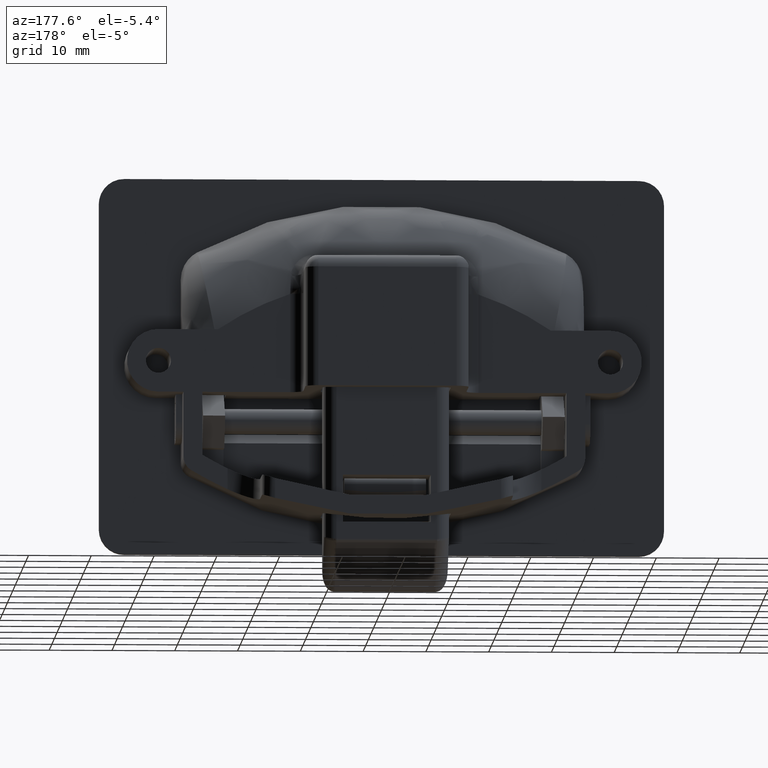
[diagram: clean part render]
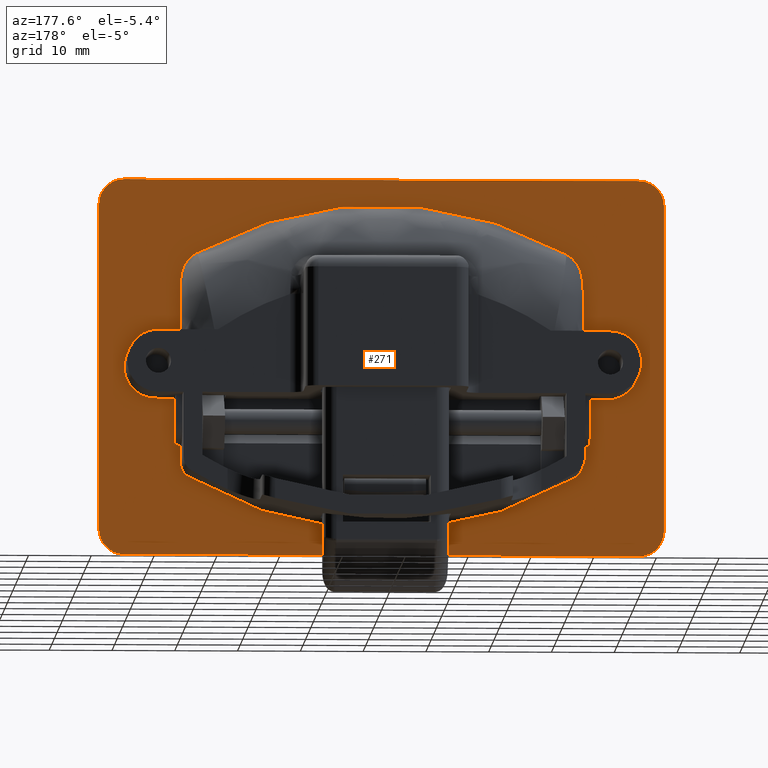
[diagram: same view with one face highlighted and labeled with its STEP entity id]
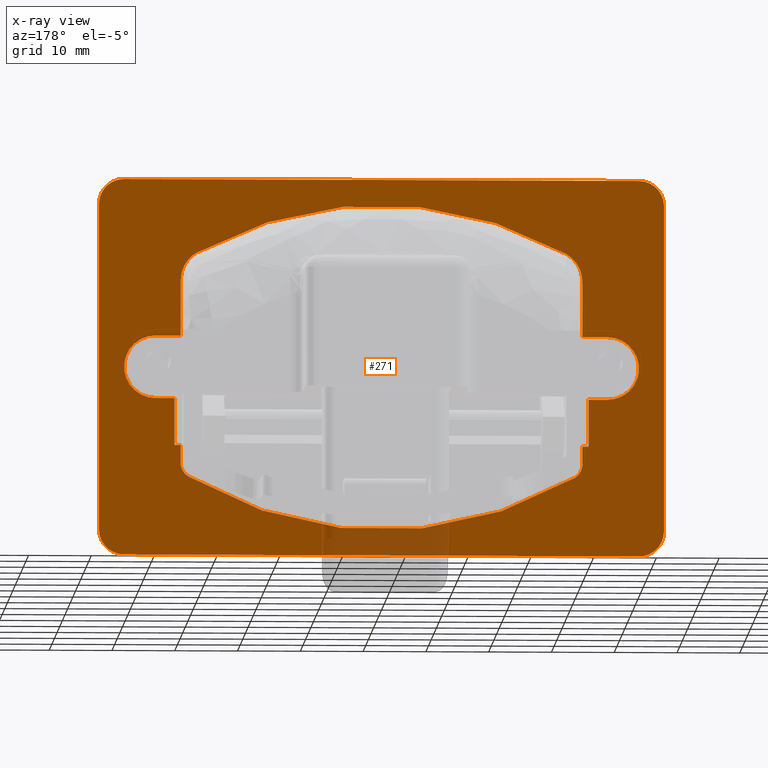
[diagram: x-ray of the same camera — body ghosted, the highlighted face saturated]
A machine part, auxiliary view. The second image highlights one B-rep face of the part: STEP entity #271.
The next image is the same camera in x-ray: the body ghosted, the highlighted face saturated — about 4% of this face is hidden behind the body in this view.
In plain terms, the highlighted planar face has unit normal (0, 1, 0).
Its self-contained STEP definition (entity closure, byte-faithful):
#271=ADVANCED_FACE('',(#1599,#1600),#1598,.T.);
#1598=PLANE('',#4059);
#1599=FACE_OUTER_BOUND('',#4060,.T.);
#1600=FACE_BOUND('',#4061,.T.);
#4056=CARTESIAN_POINT('',(-5.40000000000E+01,0.00000000000E+00,6.60000000000E+01));
#4057=DIRECTION('',(-0.00000000000E+00,1.00000000000E+00,0.00000000000E+00));
#4058=DIRECTION('',(1.00000000000E+00,0.00000000000E+00,0.00000000000E+00));
#4059=AXIS2_PLACEMENT_3D('',#4056,#4057,#4058);
#4060=EDGE_LOOP('',(#5628,#5629,#5630,#5631,#5632,#5633,#5634,#5635));
#4061=EDGE_LOOP('',(#5636,#5637,#5638,#5639,#5640,#5641,#5642,#5643,#5644,#5645,#5646,#5647,#5648,#5649,#5650,#5651,#5652,#5653,#5654,#5655,#5656,#5657));
#5628=ORIENTED_EDGE('',*,*,#6523,.F.);
#5629=ORIENTED_EDGE('',*,*,#6449,.T.);
#5630=ORIENTED_EDGE('',*,*,#6524,.F.);
#5631=ORIENTED_EDGE('',*,*,#6427,.T.);
#5632=ORIENTED_EDGE('',*,*,#6435,.F.);
#5633=ORIENTED_EDGE('',*,*,#6525,.T.);
#5634=ORIENTED_EDGE('',*,*,#6438,.F.);
#5635=ORIENTED_EDGE('',*,*,#6445,.T.);
#5636=ORIENTED_EDGE('',*,*,#6397,.T.);
#5637=ORIENTED_EDGE('',*,*,#6406,.T.);
#5638=ORIENTED_EDGE('',*,*,#6526,.F.);
#5639=ORIENTED_EDGE('',*,*,#6411,.T.);
#5640=ORIENTED_EDGE('',*,*,#6527,.T.);
#5641=ORIENTED_EDGE('',*,*,#6528,.T.);
#5642=ORIENTED_EDGE('',*,*,#6529,.F.);
#5643=ORIENTED_EDGE('',*,*,#6530,.F.);
#5644=ORIENTED_EDGE('',*,*,#6531,.T.);
#5645=ORIENTED_EDGE('',*,*,#6532,.F.);
#5646=ORIENTED_EDGE('',*,*,#6533,.T.);
#5647=ORIENTED_EDGE('',*,*,#6534,.T.);
#5648=ORIENTED_EDGE('',*,*,#6535,.T.);
#5649=ORIENTED_EDGE('',*,*,#6536,.F.);
#5650=ORIENTED_EDGE('',*,*,#6537,.T.);
#5651=ORIENTED_EDGE('',*,*,#6538,.T.);
#5652=ORIENTED_EDGE('',*,*,#6539,.T.);
#5653=ORIENTED_EDGE('',*,*,#6540,.F.);
#5654=ORIENTED_EDGE('',*,*,#6541,.F.);
#5655=ORIENTED_EDGE('',*,*,#6542,.F.);
#5656=ORIENTED_EDGE('',*,*,#6543,.F.);
#5657=ORIENTED_EDGE('',*,*,#6404,.T.);
#6397=EDGE_CURVE('',#8181,#8182,#8183,.T.);
#6404=EDGE_CURVE('',#8230,#8181,#8231,.T.);
#6406=EDGE_CURVE('',#8182,#8243,#8244,.T.);
#6411=EDGE_CURVE('',#8277,#8270,#8278,.T.);
#6427=EDGE_CURVE('',#8367,#8381,#8388,.T.);
#6435=EDGE_CURVE('',#8434,#8381,#8441,.T.);
#6438=EDGE_CURVE('',#8455,#8462,#8463,.T.);
#6445=EDGE_CURVE('',#8455,#8502,#8509,.T.);
#6449=EDGE_CURVE('',#8516,#8530,#8537,.T.);
#6523=EDGE_CURVE('',#8516,#8502,#9046,.T.);
#6524=EDGE_CURVE('',#8367,#8530,#9052,.T.);
#6525=EDGE_CURVE('',#8434,#8462,#9058,.T.);
#6526=EDGE_CURVE('',#8277,#8243,#9064,.T.);
#6527=EDGE_CURVE('',#8270,#9070,#9071,.T.);
#6528=EDGE_CURVE('',#9070,#9077,#9078,.T.);
#6529=EDGE_CURVE('',#9084,#9077,#9085,.T.);
#6530=EDGE_CURVE('',#9091,#9084,#9092,.T.);
#6531=EDGE_CURVE('',#9091,#9098,#9099,.T.);
#6532=EDGE_CURVE('',#9105,#9098,#9106,.T.);
#6533=EDGE_CURVE('',#9105,#9112,#9113,.T.);
#6534=EDGE_CURVE('',#9112,#9119,#9120,.T.);
#6535=EDGE_CURVE('',#9119,#9126,#9127,.T.);
#6536=EDGE_CURVE('',#9133,#9126,#9134,.T.);
#6537=EDGE_CURVE('',#9133,#9140,#9141,.T.);
#6538=EDGE_CURVE('',#9140,#9147,#9148,.T.);
#6539=EDGE_CURVE('',#9147,#9154,#9155,.T.);
#6540=EDGE_CURVE('',#9161,#9154,#9162,.T.);
#6541=EDGE_CURVE('',#9168,#9161,#9169,.T.);
#6542=EDGE_CURVE('',#9175,#9168,#9176,.T.);
#6543=EDGE_CURVE('',#8230,#9175,#9182,.T.);
#8181=VERTEX_POINT('',#11386);
#8182=VERTEX_POINT('',#11387);
#8183=CIRCLE('',#11391,5.00000000000E+00);
#8230=VERTEX_POINT('',#11416);
#8231=LINE('',#11417,#11418);
#8243=VERTEX_POINT('',#11423);
#8244=LINE('',#11424,#11425);
#8270=VERTEX_POINT('',#11455);
#8277=VERTEX_POINT('',#11480);
#8278=(BOUNDED_CURVE() B_SPLINE_CURVE(3,(#11481,#11482,#11483,#11484,#11485,#11486,#11487,#11488,#11489,#11490,#11491,#11492,#11493,#11494),.UNSPECIFIED.,.F.,.F.) B_SPLINE_CURVE_WITH_KNOTS((4,2,2,2,2,2,4),(0.00000000000E+00,1.35135199743E-03,2.02702799615E-03,2.70270399487E-03,3.37837999358E-03,4.05405599230E-03,5.40540798974E-03),.UNSPECIFIED.) CURVE() GEOMETRIC_REPRESENTATION_ITEM() RATIONAL_B_SPLINE_CURVE((1.00000000000E+00,1.00000000000E+00,1.00000000000E+00,1.00000000000E+00,1.00000000000E+00,1.00000000000E+00,1.00000000000E+00,1.00000000000E+00,1.00000000000E+00,1.00000000000E+00,1.00000000000E+00,1.00000000000E+00,1.00000000000E+00,1.00000000000E+00)) REPRESENTATION_ITEM('') );
#8367=VERTEX_POINT('',#11592);
#8381=VERTEX_POINT('',#11615);
#8388=CIRCLE('',#11622,4.00000000000E+00);
#8434=VERTEX_POINT('',#11667);
#8441=LINE('',#11671,#11672);
#8455=VERTEX_POINT('',#11682);
#8462=VERTEX_POINT('',#11686);
#8463=LINE('',#11687,#11688);
#8502=VERTEX_POINT('',#11738);
#8509=CIRCLE('',#11745,4.00000000000E+00);
#8516=VERTEX_POINT('',#11747);
#8530=VERTEX_POINT('',#11770);
#8537=CIRCLE('',#11777,4.00000000000E+00);
#9046=LINE('',#12325,#12326);
#9052=LINE('',#12328,#12329);
#9058=CIRCLE('',#12334,4.00000000000E+00);
#9064=LINE('',#12335,#12336);
#9070=VERTEX_POINT('',#12338);
#9071=CIRCLE('',#12342,6.00000000000E+01);
#9077=VERTEX_POINT('',#12343);
#9078=(BOUNDED_CURVE() B_SPLINE_CURVE(3,(#12344,#12345,#12346,#12347,#12348,#12349,#12350,#12351,#12352,#12353,#12354,#12355,#12356,#12357),.UNSPECIFIED.,.F.,.F.) B_SPLINE_CURVE_WITH_KNOTS((4,2,2,2,2,2,4),(0.00000000000E+00,1.34919558329E-03,2.02379337494E-03,2.69839116658E-03,4.04758674987E-03,4.72218454152E-03,5.39678233316E-03),.UNSPECIFIED.) CURVE() GEOMETRIC_REPRESENTATION_ITEM() RATIONAL_B_SPLINE_CURVE((1.00000000000E+00,1.00000000000E+00,1.00000000000E+00,1.00000000000E+00,1.00000000000E+00,1.00000000000E+00,1.00000000000E+00,1.00000000000E+00,1.00000000000E+00,1.00000000000E+00,1.00000000000E+00,1.00000000000E+00,1.00000000000E+00,1.00000000000E+00)) REPRESENTATION_ITEM('') );
#9084=VERTEX_POINT('',#12358);
#9085=LINE('',#12359,#12360);
#9091=VERTEX_POINT('',#12362);
#9092=LINE('',#12363,#12364);
#9098=VERTEX_POINT('',#12366);
#9099=CIRCLE('',#12370,5.00000000000E+00);
#9105=VERTEX_POINT('',#12371);
#9106=LINE('',#12372,#12373);
#9112=VERTEX_POINT('',#12375);
#9113=LINE('',#12376,#12377);
#9119=VERTEX_POINT('',#12379);
#9120=LINE('',#12380,#12381);
#9126=VERTEX_POINT('',#12383);
#9127=LINE('',#12384,#12385);
#9133=VERTEX_POINT('',#12387);
#9134=LINE('',#12388,#12389);
#9140=VERTEX_POINT('',#12391);
#9141=CIRCLE('',#12395,2.50000000000E+00);
#9147=VERTEX_POINT('',#12396);
#9148=CIRCLE('',#12400,6.00000000000E+01);
#9154=VERTEX_POINT('',#12401);
#9155=CIRCLE('',#12405,2.50000000000E+00);
#9161=VERTEX_POINT('',#12406);
#9162=LINE('',#12407,#12408);
#9168=VERTEX_POINT('',#12410);
#9169=LINE('',#12411,#12412);
#9175=VERTEX_POINT('',#12414);
#9176=LINE('',#12415,#12416);
#9182=LINE('',#12418,#12419);
#11386=CARTESIAN_POINT('',(3.60000000000E+01,0.00000000000E+00,2.50000000000E+01));
#11387=CARTESIAN_POINT('',(3.60000000000E+01,0.00000000000E+00,3.50000000000E+01));
#11388=CARTESIAN_POINT('',(3.60000000000E+01,0.00000000000E+00,3.00000000000E+01));
#11389=DIRECTION('',(0.00000000000E+00,-1.00000000000E+00,0.00000000000E+00));
#11390=DIRECTION('',(-0.00000000000E+00,-0.00000000000E+00,1.00000000000E+00));
#11391=AXIS2_PLACEMENT_3D('',#11388,#11389,#11390);
#11416=CARTESIAN_POINT('',(3.30000000000E+01,0.00000000000E+00,2.50000000000E+01));
#11417=CARTESIAN_POINT('',(3.30000000000E+01,0.00000000000E+00,2.50000000000E+01));
#11418=VECTOR('',#11419,3.00000000000E+00);
#11419=DIRECTION('',(1.00000000000E+00,0.00000000000E+00,0.00000000000E+00));
#11423=CARTESIAN_POINT('',(3.20000000000E+01,0.00000000000E+00,3.50000000000E+01));
#11424=CARTESIAN_POINT('',(3.60000000000E+01,0.00000000000E+00,3.50000000000E+01));
#11425=VECTOR('',#11426,4.00000000000E+00);
#11426=DIRECTION('',(-1.00000000000E+00,0.00000000000E+00,0.00000000000E+00));
#11455=CARTESIAN_POINT('',(2.94227015689E+01,0.00000000000E+00,4.82905788110E+01));
#11480=CARTESIAN_POINT('',(3.20000000000E+01,0.00000000000E+00,4.38026213322E+01));
#11481=CARTESIAN_POINT('',(3.20000000000E+01,-1.96298496951E-15,4.38026213322E+01));
#11482=CARTESIAN_POINT('',(3.20000000000E+01,-1.96298496951E-15,4.42593303179E+01));
#11483=CARTESIAN_POINT('',(3.19433205742E+01,1.52172242519E-31,4.47065584170E+01));
#11484=CARTESIAN_POINT('',(3.17724741300E+01,-0.00000000000E+00,4.53630440521E+01));
#11485=CARTESIAN_POINT('',(3.17003367084E+01,0.00000000000E+00,4.55809894347E+01));
#11486=CARTESIAN_POINT('',(3.15296491667E+01,-0.00000000000E+00,4.60010607901E+01));
#11487=CARTESIAN_POINT('',(3.14311910790E+01,0.00000000000E+00,4.62038119370E+01));
#11488=CARTESIAN_POINT('',(3.12083185855E+01,-0.00000000000E+00,4.65948964306E+01));
#11489=CARTESIAN_POINT('',(3.10839085480E+01,0.00000000000E+00,4.67832322038E+01));
#11490=CARTESIAN_POINT('',(3.08080697015E+01,-0.00000000000E+00,4.71448957954E+01));
#11491=CARTESIAN_POINT('',(3.06573345595E+01,0.00000000000E+00,4.73168854374E+01));
#11492=CARTESIAN_POINT('',(3.01787537962E+01,-0.00000000000E+00,4.77940244972E+01));
#11493=CARTESIAN_POINT('',(2.98210939109E+01,0.00000000000E+00,4.80664126370E+01));
#11494=CARTESIAN_POINT('',(2.94227015689E+01,0.00000000000E+00,4.82905788110E+01));
#11592=CARTESIAN_POINT('',(4.10000000000E+01,0.00000000000E+00,6.00000000000E+01));
#11615=CARTESIAN_POINT('',(4.50000000000E+01,0.00000000000E+00,5.60000000000E+01));
#11619=CARTESIAN_POINT('',(4.10000000000E+01,0.00000000000E+00,5.60000000000E+01));
#11620=DIRECTION('',(0.00000000000E+00,1.00000000000E+00,-0.00000000000E+00));
#11621=DIRECTION('',(-0.00000000000E+00,-0.00000000000E+00,-1.00000000000E+00));
#11622=AXIS2_PLACEMENT_3D('',#11619,#11620,#11621);
#11667=CARTESIAN_POINT('',(4.50000000000E+01,0.00000000000E+00,4.00000000000E+00));
#11671=CARTESIAN_POINT('',(4.50000000000E+01,0.00000000000E+00,4.00000000000E+00));
#11672=VECTOR('',#11673,5.20000000000E+01);
#11673=DIRECTION('',(0.00000000000E+00,0.00000000000E+00,1.00000000000E+00));
#11682=CARTESIAN_POINT('',(-4.10000000000E+01,0.00000000000E+00,0.00000000000E+00));
#11686=CARTESIAN_POINT('',(4.10000000000E+01,0.00000000000E+00,0.00000000000E+00));
#11687=CARTESIAN_POINT('',(-4.10000000000E+01,0.00000000000E+00,0.00000000000E+00));
#11688=VECTOR('',#11689,8.20000000000E+01);
#11689=DIRECTION('',(1.00000000000E+00,0.00000000000E+00,0.00000000000E+00));
#11738=CARTESIAN_POINT('',(-4.50000000000E+01,0.00000000000E+00,4.00000000000E+00));
#11742=CARTESIAN_POINT('',(-4.10000000000E+01,0.00000000000E+00,4.00000000000E+00));
#11743=DIRECTION('',(0.00000000000E+00,1.00000000000E+00,-0.00000000000E+00));
#11744=DIRECTION('',(-0.00000000000E+00,-0.00000000000E+00,-1.00000000000E+00));
#11745=AXIS2_PLACEMENT_3D('',#11742,#11743,#11744);
#11747=CARTESIAN_POINT('',(-4.50000000000E+01,0.00000000000E+00,5.60000000000E+01));
#11770=CARTESIAN_POINT('',(-4.10000000000E+01,0.00000000000E+00,6.00000000000E+01));
#11774=CARTESIAN_POINT('',(-4.10000000000E+01,0.00000000000E+00,5.60000000000E+01));
#11775=DIRECTION('',(0.00000000000E+00,1.00000000000E+00,-0.00000000000E+00));
#11776=DIRECTION('',(-0.00000000000E+00,-0.00000000000E+00,-1.00000000000E+00));
#11777=AXIS2_PLACEMENT_3D('',#11774,#11775,#11776);
#12325=CARTESIAN_POINT('',(-4.50000000000E+01,0.00000000000E+00,5.60000000000E+01));
#12326=VECTOR('',#12327,5.20000000000E+01);
#12327=DIRECTION('',(0.00000000000E+00,0.00000000000E+00,-1.00000000000E+00));
#12328=CARTESIAN_POINT('',(4.10000000000E+01,0.00000000000E+00,6.00000000000E+01));
#12329=VECTOR('',#12330,8.20000000000E+01);
#12330=DIRECTION('',(-1.00000000000E+00,0.00000000000E+00,0.00000000000E+00));
#12331=CARTESIAN_POINT('',(4.10000000000E+01,0.00000000000E+00,4.00000000000E+00));
#12332=DIRECTION('',(0.00000000000E+00,1.00000000000E+00,-0.00000000000E+00));
#12333=DIRECTION('',(-0.00000000000E+00,-0.00000000000E+00,-1.00000000000E+00));
#12334=AXIS2_PLACEMENT_3D('',#12331,#12332,#12333);
#12335=CARTESIAN_POINT('',(3.20000000000E+01,0.00000000000E+00,4.38026213322E+01));
#12336=VECTOR('',#12337,8.80262133219E+00);
#12337=DIRECTION('',(0.00000000000E+00,0.00000000000E+00,-1.00000000000E+00));
#12338=CARTESIAN_POINT('',(-2.94227015689E+01,0.00000000000E+00,4.82905788110E+01));
#12339=CARTESIAN_POINT('',(0.00000000000E+00,0.00000000000E+00,-4.00000000000E+00));
#12340=DIRECTION('',(0.00000000000E+00,-1.00000000000E+00,0.00000000000E+00));
#12341=DIRECTION('',(4.90378359481E-01,0.00000000000E+00,8.71509646850E-01));
#12342=AXIS2_PLACEMENT_3D('',#12339,#12340,#12341);
#12343=CARTESIAN_POINT('',(-3.20000000000E+01,0.00000000000E+00,4.38026213322E+01));
#12344=CARTESIAN_POINT('',(-2.94227015689E+01,-7.27045269108E-16,4.82905788110E+01));
#12345=CARTESIAN_POINT('',(-2.98203683136E+01,-7.27045269108E-16,4.80668209139E+01));
#12346=CARTESIAN_POINT('',(-3.01785033988E+01,4.19068089751E-32,4.77944124651E+01));
#12347=CARTESIAN_POINT('',(-3.06586150192E+01,-0.00000000000E+00,4.73155394226E+01));
#12348=CARTESIAN_POINT('',(-3.08096643059E+01,0.00000000000E+00,4.71428925036E+01));
#12349=CARTESIAN_POINT('',(-3.10837547541E+01,-0.00000000000E+00,4.67833459290E+01));
#12350=CARTESIAN_POINT('',(-3.12078739202E+01,0.00000000000E+00,4.65956035084E+01));
#12351=CARTESIAN_POINT('',(-3.15422996509E+01,-0.00000000000E+00,4.60089906703E+01));
#12352=CARTESIAN_POINT('',(-3.17153788117E+01,0.00000000000E+00,4.55817704635E+01));
#12353=CARTESIAN_POINT('',(-3.18857109935E+01,-0.00000000000E+00,4.49282563808E+01));
#12354=CARTESIAN_POINT('',(-3.19283589851E+01,0.00000000000E+00,4.47072184350E+01));
#12355=CARTESIAN_POINT('',(-3.19855441782E+01,-0.00000000000E+00,4.42587762281E+01));
#12356=CARTESIAN_POINT('',(-3.20000000000E+01,-0.00000000000E+00,4.40306007455E+01));
#12357=CARTESIAN_POINT('',(-3.20000000000E+01,0.00000000000E+00,4.38026213322E+01));
#12358=CARTESIAN_POINT('',(-3.20000000000E+01,0.00000000000E+00,3.50000000000E+01));
#12359=CARTESIAN_POINT('',(-3.20000000000E+01,0.00000000000E+00,3.50000000000E+01));
#12360=VECTOR('',#12361,8.80262133219E+00);
#12361=DIRECTION('',(0.00000000000E+00,0.00000000000E+00,1.00000000000E+00));
#12362=CARTESIAN_POINT('',(-3.60000000000E+01,0.00000000000E+00,3.50000000000E+01));
#12363=CARTESIAN_POINT('',(-3.60000000000E+01,0.00000000000E+00,3.50000000000E+01));
#12364=VECTOR('',#12365,4.00000000000E+00);
#12365=DIRECTION('',(1.00000000000E+00,0.00000000000E+00,0.00000000000E+00));
#12366=CARTESIAN_POINT('',(-3.60000000000E+01,0.00000000000E+00,2.50000000000E+01));
#12367=CARTESIAN_POINT('',(-3.60000000000E+01,0.00000000000E+00,3.00000000000E+01));
#12368=DIRECTION('',(0.00000000000E+00,-1.00000000000E+00,0.00000000000E+00));
#12369=DIRECTION('',(-0.00000000000E+00,-0.00000000000E+00,1.00000000000E+00));
#12370=AXIS2_PLACEMENT_3D('',#12367,#12368,#12369);
#12371=CARTESIAN_POINT('',(-3.30000000000E+01,0.00000000000E+00,2.50000000000E+01));
#12372=CARTESIAN_POINT('',(-3.30000000000E+01,0.00000000000E+00,2.50000000000E+01));
#12373=VECTOR('',#12374,3.00000000000E+00);
#12374=DIRECTION('',(-1.00000000000E+00,0.00000000000E+00,0.00000000000E+00));
#12375=CARTESIAN_POINT('',(-3.30000000000E+01,-1.01481323345E-13,2.10000000000E+01));
#12376=CARTESIAN_POINT('',(-3.30000000000E+01,-1.01396368787E-13,2.50000000000E+01));
#12377=VECTOR('',#12378,4.00000000000E+00);
#12378=DIRECTION('',(0.00000000000E+00,0.00000000000E+00,-1.00000000000E+00));
#12379=CARTESIAN_POINT('',(-3.30000000000E+01,0.00000000000E+00,1.75000000000E+01));
#12380=CARTESIAN_POINT('',(-3.30000000000E+01,-1.01396368787E-13,2.10000000000E+01));
#12381=VECTOR('',#12382,3.50000000000E+00);
#12382=DIRECTION('',(0.00000000000E+00,0.00000000000E+00,-1.00000000000E+00));
#12383=CARTESIAN_POINT('',(-3.20000000000E+01,0.00000000000E+00,1.75000000000E+01));
#12384=CARTESIAN_POINT('',(-3.30000000000E+01,-1.01396368787E-13,1.75000000000E+01));
#12385=VECTOR('',#12386,1.00000000000E+00);
#12386=DIRECTION('',(1.00000000000E+00,3.07261723596E-15,0.00000000000E+00));
#12387=CARTESIAN_POINT('',(-3.20000000000E+01,0.00000000000E+00,1.46441492830E+01));
#12388=CARTESIAN_POINT('',(-3.20000000000E+01,0.00000000000E+00,1.46441492830E+01));
#12389=VECTOR('',#12390,2.85585071701E+00);
#12390=DIRECTION('',(0.00000000000E+00,0.00000000000E+00,1.00000000000E+00));
#12391=CARTESIAN_POINT('',(-3.07826086957E+01,0.00000000000E+00,1.24982427301E+01));
#12392=CARTESIAN_POINT('',(-2.95000000000E+01,0.00000000000E+00,1.46441492830E+01));
#12393=DIRECTION('',(0.00000000000E+00,-1.00000000000E+00,0.00000000000E+00));
#12394=DIRECTION('',(-0.00000000000E+00,-0.00000000000E+00,-1.00000000000E+00));
#12395=AXIS2_PLACEMENT_3D('',#12392,#12393,#12394);
#12396=CARTESIAN_POINT('',(3.07826086957E+01,0.00000000000E+00,1.24982427301E+01));
#12397=CARTESIAN_POINT('',(0.00000000000E+00,0.00000000000E+00,6.40000000000E+01));
#12398=DIRECTION('',(0.00000000000E+00,-1.00000000000E+00,0.00000000000E+00));
#12399=DIRECTION('',(-0.00000000000E+00,-0.00000000000E+00,1.00000000000E+00));
#12400=AXIS2_PLACEMENT_3D('',#12397,#12398,#12399);
#12401=CARTESIAN_POINT('',(3.20000000000E+01,0.00000000000E+00,1.46441492830E+01));
#12402=CARTESIAN_POINT('',(2.95000000000E+01,0.00000000000E+00,1.46441492830E+01));
#12403=DIRECTION('',(0.00000000000E+00,-1.00000000000E+00,0.00000000000E+00));
#12404=DIRECTION('',(-0.00000000000E+00,-0.00000000000E+00,-1.00000000000E+00));
#12405=AXIS2_PLACEMENT_3D('',#12402,#12403,#12404);
#12406=CARTESIAN_POINT('',(3.20000000000E+01,0.00000000000E+00,1.75000000000E+01));
#12407=CARTESIAN_POINT('',(3.20000000000E+01,0.00000000000E+00,1.75000000000E+01));
#12408=VECTOR('',#12409,2.85585071701E+00);
#12409=DIRECTION('',(0.00000000000E+00,0.00000000000E+00,-1.00000000000E+00));
#12410=CARTESIAN_POINT('',(3.30000000000E+01,0.00000000000E+00,1.75000000000E+01));
#12411=CARTESIAN_POINT('',(3.30000000000E+01,0.00000000000E+00,1.75000000000E+01));
#12412=VECTOR('',#12413,1.00000000000E+00);
#12413=DIRECTION('',(-1.00000000000E+00,0.00000000000E+00,0.00000000000E+00));
#12414=CARTESIAN_POINT('',(3.30000000000E+01,0.00000000000E+00,2.10000000000E+01));
#12415=CARTESIAN_POINT('',(3.30000000000E+01,0.00000000000E+00,2.10000000000E+01));
#12416=VECTOR('',#12417,3.50000000000E+00);
#12417=DIRECTION('',(0.00000000000E+00,0.00000000000E+00,-1.00000000000E+00));
#12418=CARTESIAN_POINT('',(3.30000000000E+01,0.00000000000E+00,2.50000000000E+01));
#12419=VECTOR('',#12420,4.00000000000E+00);
#12420=DIRECTION('',(0.00000000000E+00,0.00000000000E+00,-1.00000000000E+00));